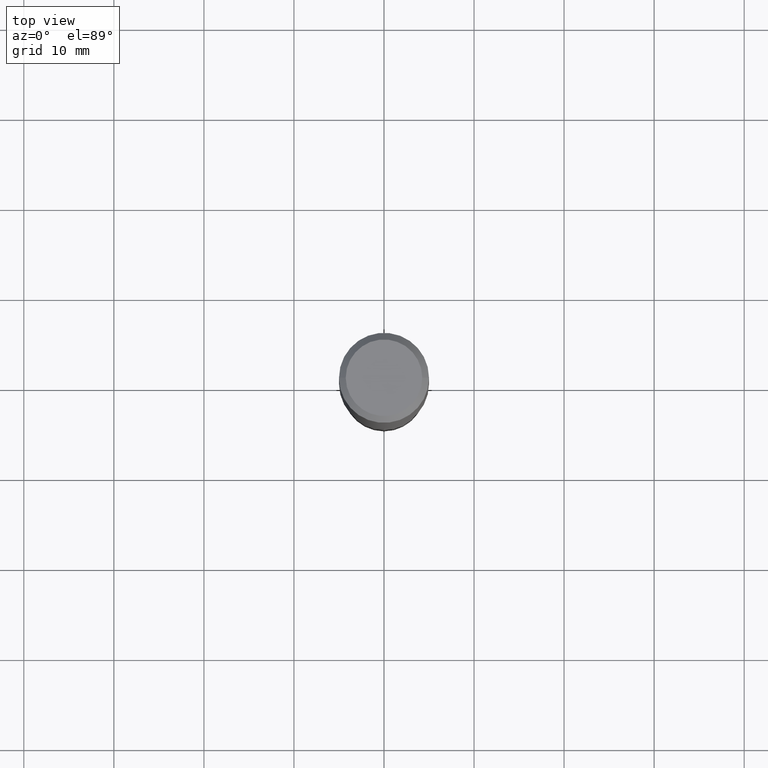
[diagram: clean part render]
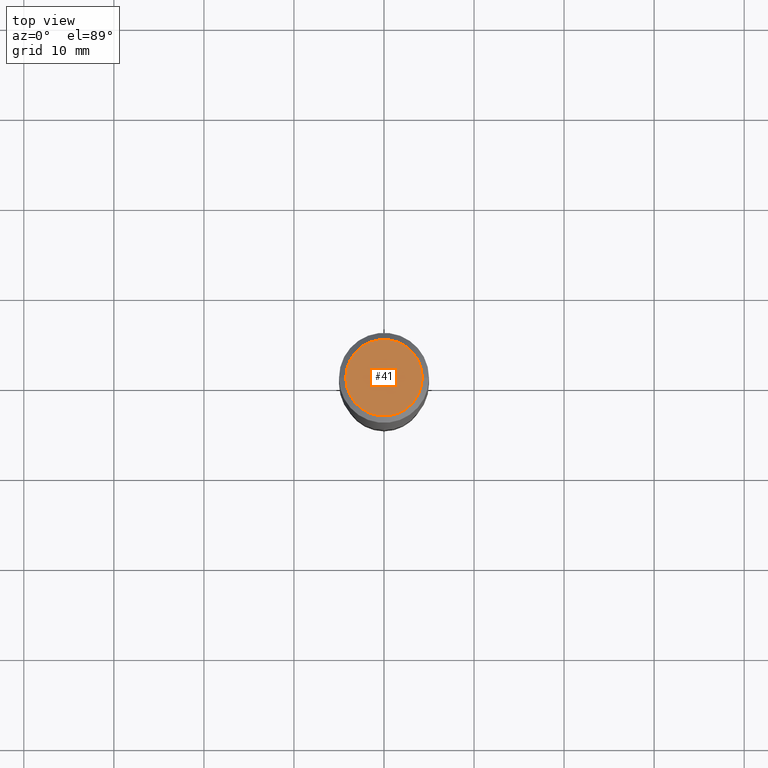
[diagram: same view with one face highlighted and labeled with its STEP entity id]
A machine part, top view. The second image highlights one B-rep face of the part: STEP entity #41.
In plain terms, the highlighted planar face has unit normal (0, -0, -1).
Its self-contained STEP definition (entity closure, byte-faithful):
#4 = EDGE_CURVE ( 'NONE', #69, #404, #242, .T. ) ;
#9 = DIRECTION ( 'NONE',  ( -2.445468806185136597E-29, 3.491481338843145583E-15, 1.000000000000000000 ) ) ;
#27 = DIRECTION ( 'NONE',  ( -1.000000000000000000, 6.982962677686265922E-15, -4.876176775795935793E-29 ) ) ;
#41 = ADVANCED_FACE ( 'NONE', ( #266 ), #85, .F. ) ;
#69 = VERTEX_POINT ( 'NONE', #391 ) ;
#81 = DIRECTION ( 'NONE',  ( 1.000000000000000000, -6.982962677686267499E-15, 4.876294436782262290E-29 ) ) ;
#85 = PLANE ( 'NONE',  #425 ) ;
#119 = CARTESIAN_POINT ( 'NONE',  ( -0.1673224999999999851, 1.219954130253505263E-15, 4.096137381439757534E-18 ) ) ;
#125 = AXIS2_PLACEMENT_3D ( 'NONE', #308, #9, #148 ) ;
#148 = DIRECTION ( 'NONE',  ( 1.000000000000000000, -6.982962677686267499E-15, 4.876294436782262290E-29 ) ) ;
#224 = AXIS2_PLACEMENT_3D ( 'NONE', #444, #246, #81 ) ;
#233 = CARTESIAN_POINT ( 'NONE',  ( -5.008488096090108951E-47, 7.150793614331948590E-33, 2.048068690724054183E-18 ) ) ;
#242 = CIRCLE ( 'NONE', #224, 0.1673224999999999851 ) ;
#246 = DIRECTION ( 'NONE',  ( -2.445468806185136597E-29, 3.491481338843145583E-15, 1.000000000000000000 ) ) ;
#266 = FACE_OUTER_BOUND ( 'NONE', #420, .T. ) ;
#273 = CIRCLE ( 'NONE', #125, 0.1673224999999999851 ) ;
#308 = CARTESIAN_POINT ( 'NONE',  ( -1.001697619218021790E-46, 1.430158722866389718E-32, 4.096137381448108366E-18 ) ) ;
#339 = ORIENTED_EDGE ( 'NONE', *, *, #352, .T. ) ;
#352 = EDGE_CURVE ( 'NONE', #404, #69, #273, .T. ) ;
#373 = DIRECTION ( 'NONE',  ( 2.438088387897960049E-29, -3.491481338843145188E-15, -1.000000000000000000 ) ) ;
#391 = CARTESIAN_POINT ( 'NONE',  ( 0.1673224999999999851, -1.300749711163072397E-15, 4.096137381456741925E-18 ) ) ;
#404 = VERTEX_POINT ( 'NONE', #119 ) ;
#420 = EDGE_LOOP ( 'NONE', ( #339, #463 ) ) ;
#425 = AXIS2_PLACEMENT_3D ( 'NONE', #233, #373, #27 ) ;
#444 = CARTESIAN_POINT ( 'NONE',  ( -1.001697619218021790E-46, 1.430158722866389718E-32, 4.096137381448108366E-18 ) ) ;
#463 = ORIENTED_EDGE ( 'NONE', *, *, #4, .T. ) ;